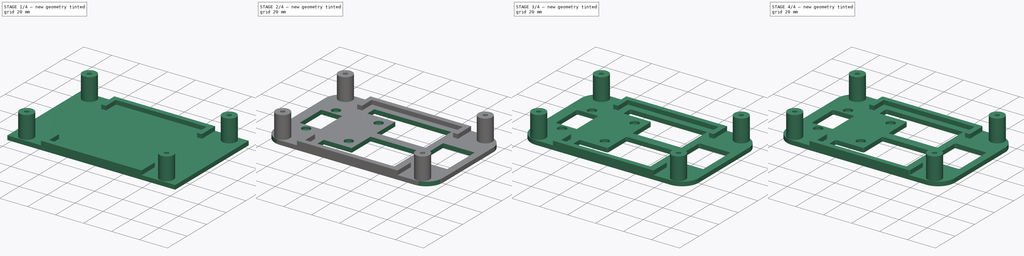
[diagram: build sequence overview — one tinted view per stage of 4, left to right]
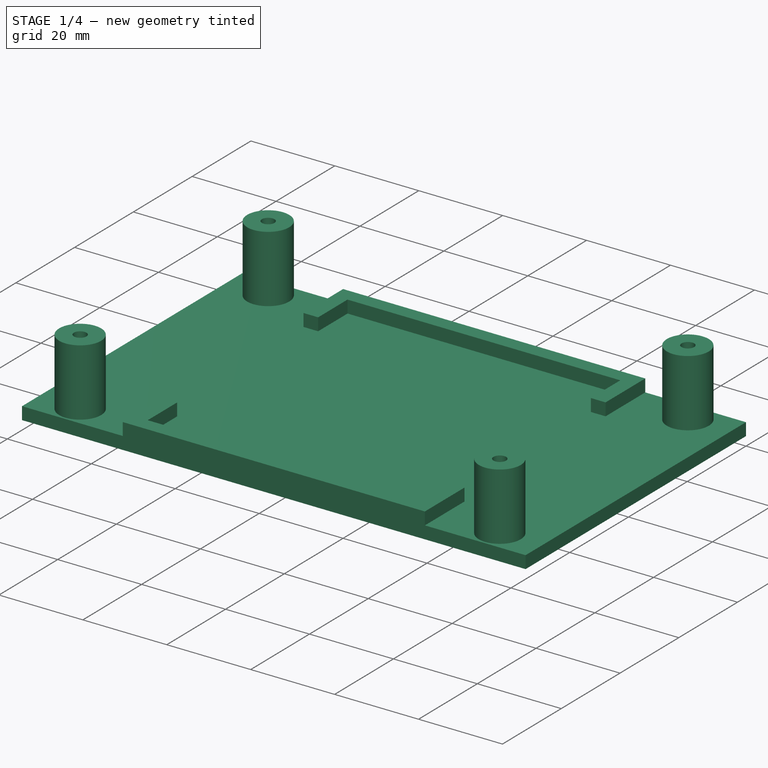
[diagram: stage 1 of 4 — iso view after this stage's code; geometry added in this stage tinted green]
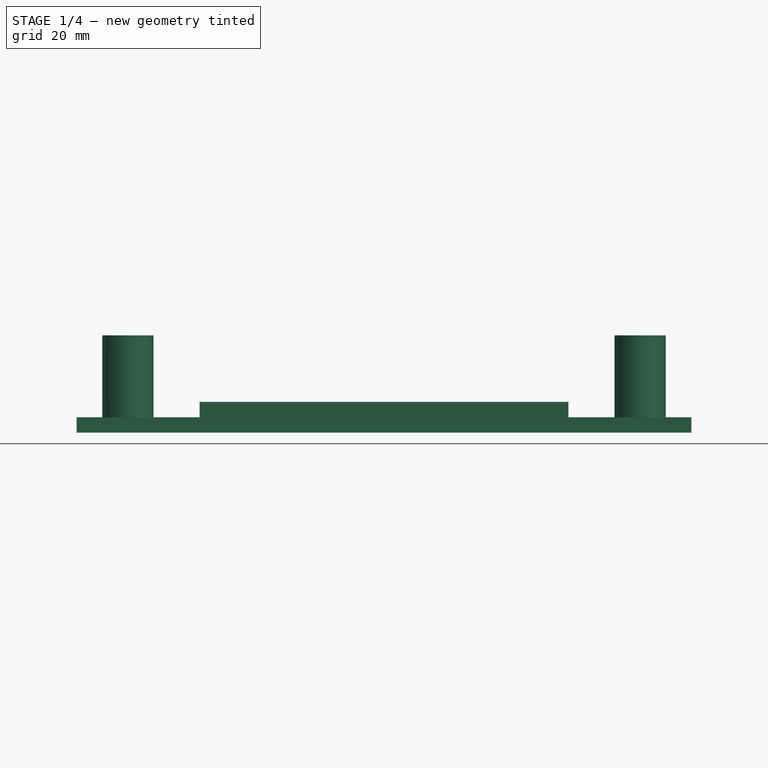
[diagram: stage 1 of 4 — front view after this stage's code; geometry added in this stage tinted green]
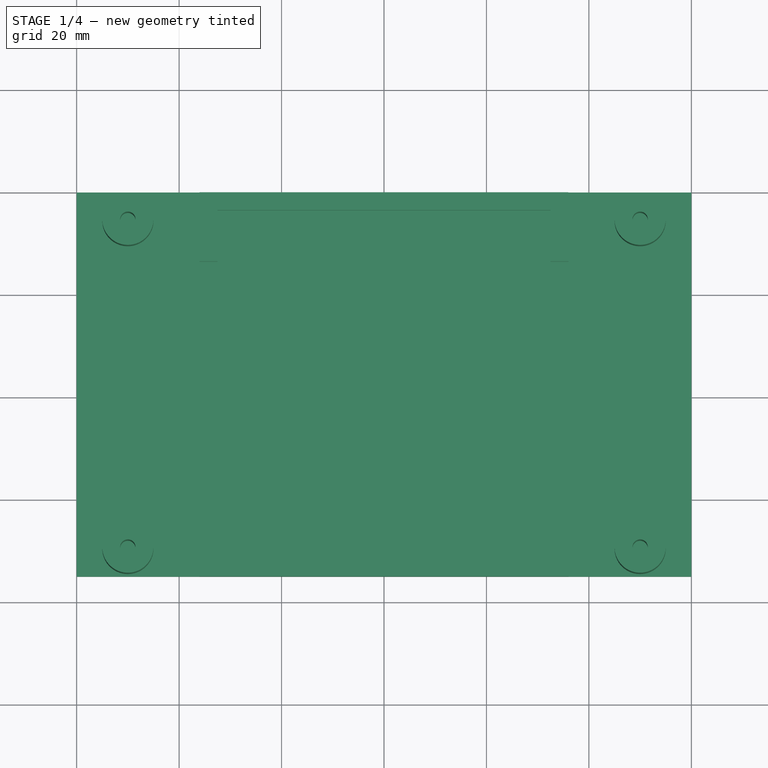
[diagram: stage 1 of 4 — top view after this stage's code; geometry added in this stage tinted green]
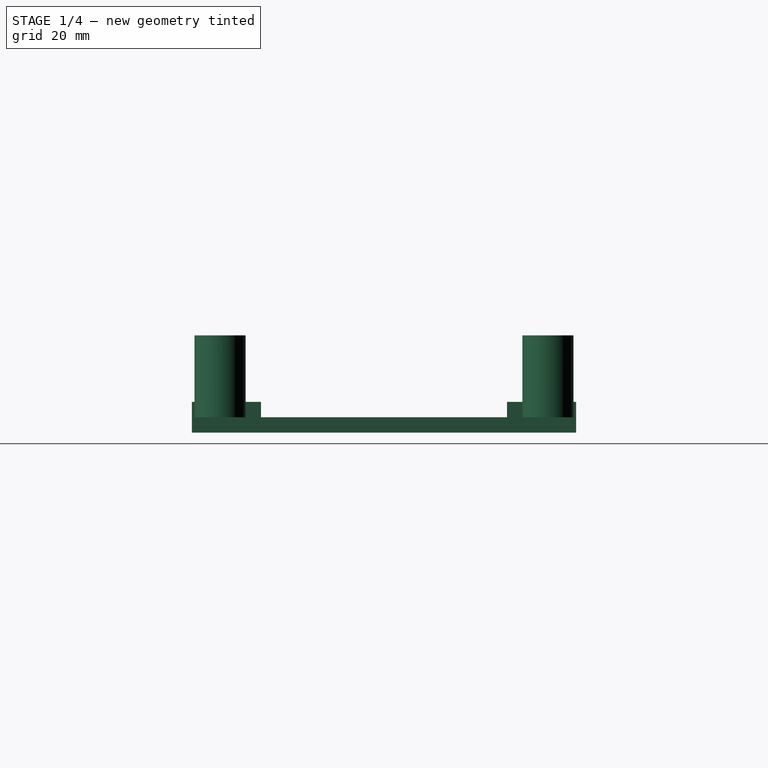
[diagram: stage 1 of 4 — right view after this stage's code; geometry added in this stage tinted green]
FCSTD DOCUMENT  (FreeCAD 0.16R6707 (Git))
Label: SupportCartes
License: All rights reserved
LicenseURL: http://en.wikipedia.org/wiki/All_rights_reserved
objects: PartDesign::Fillet×7, Sketcher::SketchObject×5, PartDesign::Pad×3, PartDesign::Pocket×2
note: 22 computed .brp shape members not serialized (recipe doc carries the construction recipe); baked Part::Feature solids carry a one-line shape summary decoded from their .brp

FEATURE [Sketcher::SketchObject] Sketch
  sketch-geometry (4):
    g0: LineSegment StartX=0 StartY=0 StartZ=0 EndX=120 EndY=0 EndZ=0
    g1: LineSegment StartX=120 StartY=0 StartZ=0 EndX=120 EndY=-75 EndZ=0
    g2: LineSegment StartX=120 StartY=-75 StartZ=0 EndX=0 EndY=-75 EndZ=0
    g3: LineSegment StartX=0 StartY=-75 StartZ=0 EndX=0 EndY=0 EndZ=0
  constraints (11):
    c: Coincident(g0,g1)
    c: Coincident(g1,g2)
    c: Coincident(g2,g3)
    c: Coincident(g3,g0)
    c: Horizontal(g0)
    c: Horizontal(g2)
    c: Vertical(g1)
    c: Vertical(g3)
    c: Coincident(g0,g-1)
    c: DistanceX(g0,g0) = 120
    c: DistanceY(g3,g3) = 75
FEATURE [PartDesign::Pad] Pad
  Length = 3
  Length2 = 100
  Sketch = -> Sketch
  Type = 0
FEATURE [Sketcher::SketchObject] Sketch001
  ExternalGeometry = -> [Pad]
  Placement = pos=(0,0,3) rot=(0,0,1;0rad)
  Support = -> Pad [Face6]
  sketch-geometry (16):
    g0: LineSegment StartX=27.5 StartY=-3.5 StartZ=0 EndX=92.5 EndY=-3.5 EndZ=0
    g1: LineSegment StartX=92.5 StartY=-3.5 StartZ=0 EndX=92.5 EndY=-13.5 EndZ=0
    g2: LineSegment StartX=92.5 StartY=-71.5 StartZ=0 EndX=27.5 EndY=-71.5 EndZ=0
    g3: LineSegment StartX=27.5 StartY=-71.5 StartZ=0 EndX=27.5 EndY=-61.5 EndZ=0
    g4: LineSegment StartX=24 StartY=0 StartZ=0 EndX=96 EndY=0 EndZ=0
    g5: LineSegment StartX=96 StartY=0 StartZ=0 EndX=96 EndY=-13.5 EndZ=0
    g6: LineSegment StartX=96 StartY=-75 StartZ=0 EndX=24 EndY=-75 EndZ=0
    g7: LineSegment StartX=24 StartY=-75 StartZ=0 EndX=24 EndY=-61.5 EndZ=0
    g8: LineSegment StartX=92.5 StartY=-13.5 StartZ=0 EndX=96 EndY=-13.5 EndZ=0
    g9: LineSegment StartX=24 StartY=-13.5 StartZ=0 EndX=27.5 EndY=-13.5 EndZ=0
    g10: LineSegment StartX=24 StartY=-61.5 StartZ=0 EndX=27.5 EndY=-61.5 EndZ=0
    g11: LineSegment StartX=92.5 StartY=-61.5 StartZ=0 EndX=96 EndY=-61.5 EndZ=0
    g12: LineSegment StartX=96 StartY=-61.5 StartZ=0 EndX=96 EndY=-75 EndZ=0
    g13: LineSegment StartX=92.5 StartY=-61.5 StartZ=0 EndX=92.5 EndY=-71.5 EndZ=0
    g14: LineSegment StartX=27.5 StartY=-13.5 StartZ=0 EndX=27.5 EndY=-3.5 EndZ=0
    g15: LineSegment StartX=24 StartY=-13.5 StartZ=0 EndX=24 EndY=0 EndZ=0
  constraints (44):
    c: Coincident(g0,g1)
    c: Coincident(g13,g2)
    c: Coincident(g2,g3)
    c: Coincident(g14,g0)
    c: Horizontal(g0)
    c: Horizontal(g2)
    c: Vertical(g1)
    c: Vertical(g3)
    c: Coincident(g12,g6)
    c: Coincident(g6,g7)
    c: Coincident(g15,g4)
    c: Horizontal(g4)
    c: Horizontal(g6)
    c: Vertical(g5)
    c: Vertical(g7)
    c: DistanceX(g0,g0) = 65
    c: DistanceY(g13,g1) = 68
    c: DistanceY(g0,g4) = 3.5
    c: DistanceX(g13,g12) = 3.5
    c: DistanceX(g6,g2) = 3.5
    c: DistanceX(g-1,g4) = 24
    c: Horizontal(g8)
    c: Horizontal(g11)
    c: Horizontal(g9)
    c: Horizontal(g10)
    c: Coincident(g5,g8)
    c: Coincident(g12,g11)
    c: Tangent(g5,g12)
    c: Coincident(g1,g8)
    c: Coincident(g13,g11)
    c: Tangent(g1,g13)
    c: Coincident(g3,g10)
    c: Coincident(g14,g9)
    c: Tangent(g3,g14)
    c: Coincident(g7,g10)
    c: Coincident(g15,g9)
    c: Tangent(g7,g15)
    c: DistanceY(g14,g14) = 10
    c: DistanceY(g1,g1) = 10
    c: DistanceY(g3,g3) = 10
    c: DistanceY(g13,g13) = 10
    c: PointOnObject(g6,g-4)
    c: Coincident(g5,g4)
    c: PointOnObject(g4,g-1)
FEATURE [PartDesign::Pad] Pad001
  Length = 3
  Length2 = 100
  Sketch = -> Sketch001
  Type = 0
FEATURE [Sketcher::SketchObject] Sketch002
  ExternalGeometry = -> [Pad001]
  Placement = pos=(0,0,3) rot=(0,0,1;0rad)
  Support = -> Pad001 [Face5]
  sketch-geometry (8):
    g0: Circle CenterX=10 CenterY=-5.5 CenterZ=0 NormalX=0 NormalY=0 NormalZ=1 Radius=5
    g1: Circle CenterX=110 CenterY=-5.5 CenterZ=0 NormalX=0 NormalY=0 NormalZ=1 Radius=5
    g2: Circle CenterX=110 CenterY=-69.5 CenterZ=0 NormalX=0 NormalY=0 NormalZ=1 Radius=5
    g3: Circle CenterX=10 CenterY=-69.5 CenterZ=0 NormalX=0 NormalY=0 NormalZ=1 Radius=5
    g4: Circle CenterX=10 CenterY=-5.5 CenterZ=0 NormalX=0 NormalY=0 NormalZ=1 Radius=1.5
    g5: Circle CenterX=10 CenterY=-69.5 CenterZ=0 NormalX=0 NormalY=0 NormalZ=1 Radius=1.5
    g6: Circle CenterX=110 CenterY=-5.5 CenterZ=0 NormalX=0 NormalY=0 NormalZ=1 Radius=1.5
    g7: Circle CenterX=110 CenterY=-69.5 CenterZ=0 NormalX=0 NormalY=0 NormalZ=1 Radius=1.5
  constraints (20):
    c: Radius(g0) = 5
    c: Radius(g3) = 5
    c: Equal(g3,g1)
    c: Equal(g3,g2)
    c: DistanceX(g1,g-3) = 10
    c: DistanceY(g1,g-3) = 5.5
    c: DistanceX(g2,g-3) = 10
    c: DistanceY(g-3,g2) = 5.5
    c: DistanceY(g-4,g3) = 5.5
    c: DistanceX(g-4,g3) = 10
    c: DistanceY(g0,g-1) = 5.5
    c: DistanceX(g-1,g0) = 10
    c: Radius(g4) = 1.5
    c: Equal(g4,g5)
    c: Equal(g4,g7)
    c: Equal(g4,g6)
    c: Coincident(g6,g1)
    c: Coincident(g7,g2)
    c: Coincident(g5,g3)
    c: Coincident(g4,g0)
FEATURE [PartDesign::Pad] Pad002
  Length = 16
  Length2 = 100
  Sketch = -> Sketch002
  Type = 0
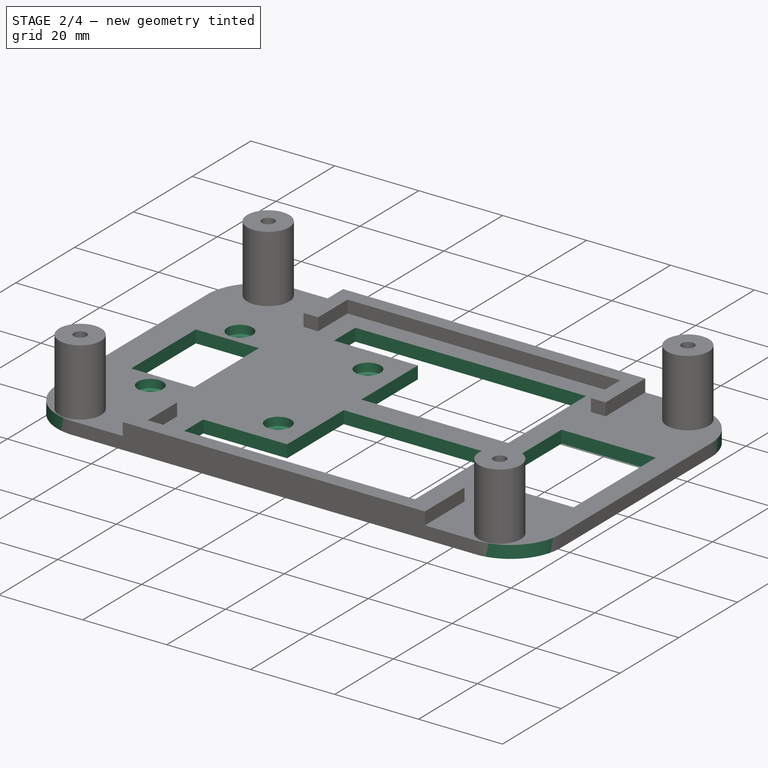
[diagram: stage 2 of 4 — iso view after this stage's code; geometry added in this stage tinted green]
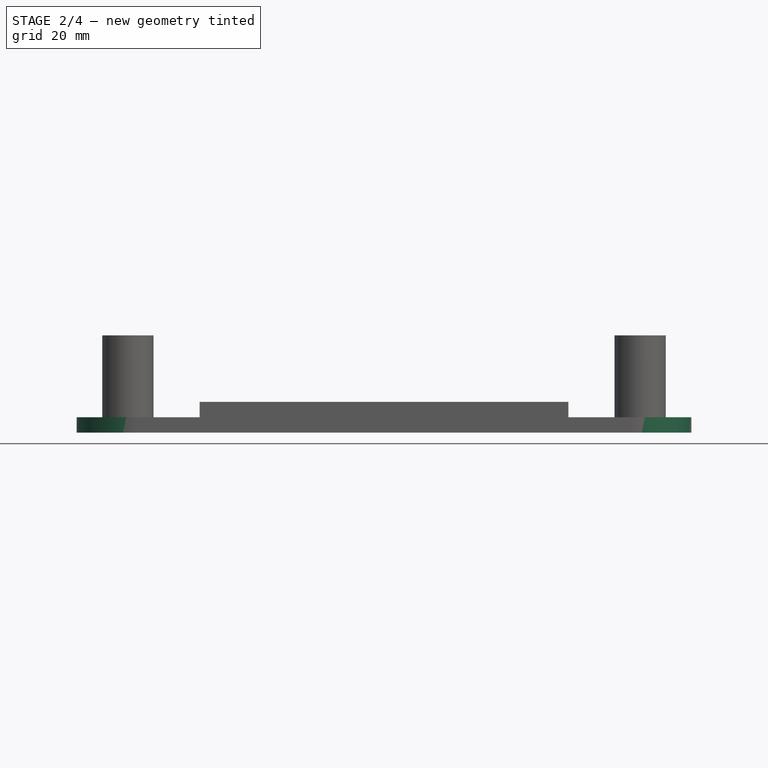
[diagram: stage 2 of 4 — front view after this stage's code; geometry added in this stage tinted green]
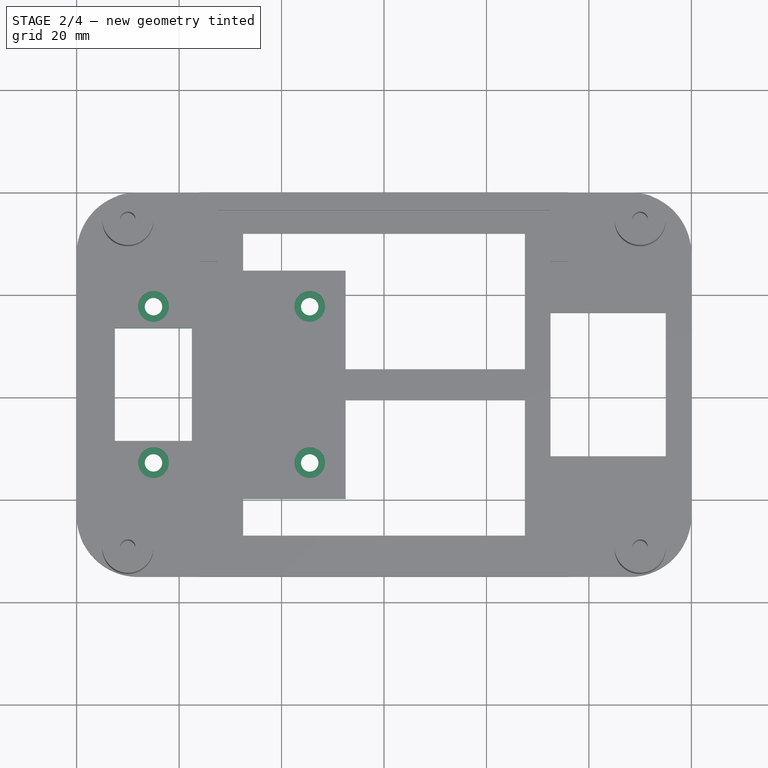
[diagram: stage 2 of 4 — top view after this stage's code; geometry added in this stage tinted green]
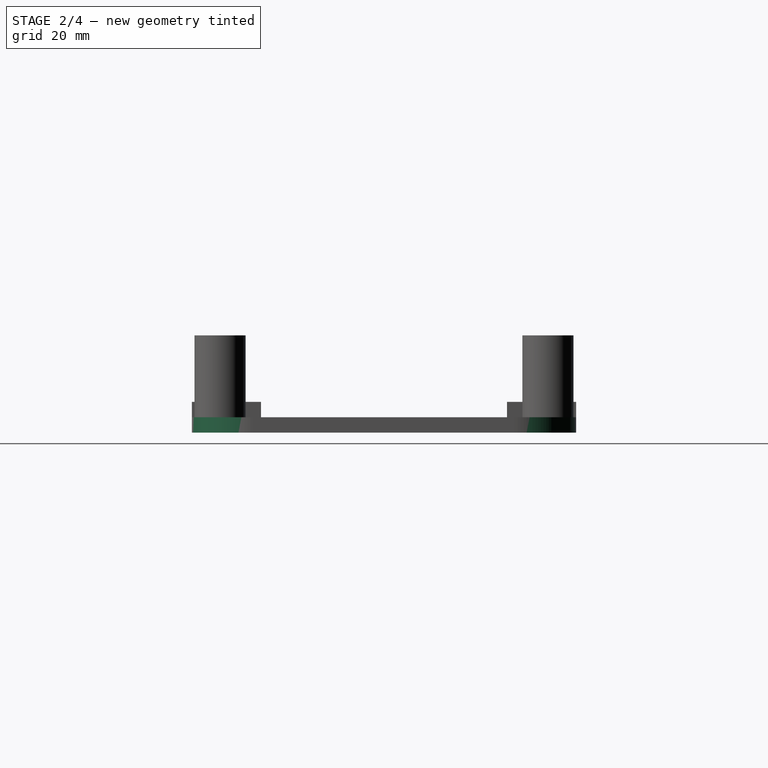
[diagram: stage 2 of 4 — right view after this stage's code; geometry added in this stage tinted green]
FEATURE [Sketcher::SketchObject] Sketch003
  ExternalGeometry = -> [Pad002]
  Placement = pos=(0,0,3) rot=(0,0,1;0rad)
  Support = -> Pad002 [Face5]
  sketch-geometry (27):
    g0: Circle CenterX=15 CenterY=-22.25 CenterZ=0 NormalX=0 NormalY=0 NormalZ=1 Radius=1.7
    g1: Circle CenterX=45.5 CenterY=-22.25 CenterZ=0 NormalX=0 NormalY=0 NormalZ=1 Radius=1.7
    g2: Circle CenterX=15 CenterY=-52.75 CenterZ=0 NormalX=0 NormalY=0 NormalZ=1 Radius=1.7
    g3: Circle CenterX=45.5 CenterY=-52.75 CenterZ=0 NormalX=0 NormalY=0 NormalZ=1 Radius=1.7
    g4: LineSegment [constr] StartX=15 StartY=-37.5 StartZ=0 EndX=45.5 EndY=-37.5 EndZ=0
    g5: LineSegment [constr] StartX=45.5 StartY=-22.25 StartZ=0 EndX=45.5 EndY=-52.75 EndZ=0
    g6: LineSegment [constr] StartX=15 StartY=-22.25 StartZ=0 EndX=15 EndY=-52.75 EndZ=0
    g7: LineSegment StartX=7.46 StartY=-26.5 StartZ=0 EndX=22.5 EndY=-26.5 EndZ=0
    g8: LineSegment StartX=22.5 StartY=-26.5 StartZ=0 EndX=22.5 EndY=-48.5 EndZ=0
    g9: LineSegment StartX=22.5 StartY=-48.5 StartZ=0 EndX=7.46 EndY=-48.5 EndZ=0
    g10: LineSegment StartX=7.46 StartY=-48.5 StartZ=0 EndX=7.46 EndY=-26.5 EndZ=0
    g11: LineSegment StartX=32.5 StartY=-8 StartZ=0 EndX=87.5 EndY=-8 EndZ=0
    g12: LineSegment StartX=87.5 StartY=-8 StartZ=0 EndX=87.5 EndY=-34.5 EndZ=0
    g13: LineSegment StartX=32.5 StartY=-8 StartZ=0 EndX=32.5 EndY=-15.25 EndZ=0
    g14: LineSegment StartX=32.5 StartY=-15.25 StartZ=0 EndX=52.5 EndY=-15.25 EndZ=0
    g15: LineSegment StartX=52.5 StartY=-15.25 StartZ=0 EndX=52.5 EndY=-34.5 EndZ=0
    g16: LineSegment StartX=52.5 StartY=-34.5 StartZ=0 EndX=87.5 EndY=-34.5 EndZ=0
    g17: LineSegment StartX=32.5 StartY=-59.75 StartZ=0 EndX=32.5 EndY=-67 EndZ=0
    g18: LineSegment StartX=32.5 StartY=-67 StartZ=0 EndX=87.5 EndY=-67 EndZ=0
    g19: LineSegment StartX=87.5 StartY=-67 StartZ=0 EndX=87.5 EndY=-40.5 EndZ=0
    g20: LineSegment StartX=87.5 StartY=-40.5 StartZ=0 EndX=52.5 EndY=-40.5 EndZ=0
    g21: LineSegment StartX=52.5 StartY=-40.5 StartZ=0 EndX=52.5 EndY=-59.75 EndZ=0
    g22: LineSegment StartX=32.5 StartY=-59.75 StartZ=0 EndX=52.5 EndY=-59.75 EndZ=0
    g23: LineSegment StartX=92.5 StartY=-23.5 StartZ=0 EndX=115 EndY=-23.5 EndZ=0
    g24: LineSegment StartX=115 StartY=-23.5 StartZ=0 EndX=115 EndY=-51.5 EndZ=0
    g25: LineSegment StartX=115 StartY=-51.5 StartZ=0 EndX=92.5 EndY=-51.5 EndZ=0
    g26: LineSegment StartX=92.5 StartY=-51.5 StartZ=0 EndX=92.5 EndY=-23.5 EndZ=0
  constraints (80):
    c: Radius(g0) = 1.7
    c: Equal(g0,g1)
    c: Equal(g0,g3)
    c: Equal(g0,g2)
    c: Horizontal(g4)
    c: Vertical(g5)
    c: Vertical(g6)
    c: DistanceY(g4,g-1) = 37.5
    c: DistanceY(g6,g6) = 30.5
    c: Coincident(g6,g0)
    c: Coincident(g2,g6)
    c: PointOnObject(g4,g6)
    c: Symmetric(g0,g2,g4)
    c: DistanceY(g5,g5) = 30.5
    c: Coincident(g1,g5)
    c: Coincident(g3,g5)
    c: Symmetric(g3,g1,g4)
    c: PointOnObject(g4,g5)
    c: DistanceX(g4,g4) = 30.5
    c: Coincident(g7,g8)
    c: Coincident(g8,g9)
    c: Coincident(g9,g10)
    c: Coincident(g10,g7)
    c: Horizontal(g7)
    c: Horizontal(g9)
    c: Vertical(g8)
    c: Vertical(g10)
    c: DistanceY(g8,g8) = 22
    c: Symmetric(g7,g8,g4)
    c: DistanceX(g4,g7) = 7.5
    c: DistanceX(g-1,g4) = 15
    c: DistanceX(g7,g4) = 7.54
    c: Horizontal(g11)
    c: Coincident(g12,g11)
    c: Vertical(g13)
    c: Horizontal(g14)
    c: Vertical(g15)
    c: Coincident(g16,g15)
    c: Horizontal(g16)
    c: Coincident(g12,g16)
    c: Vertical(g12)
    c: Coincident(g11,g13)
    c: Coincident(g13,g14)
    c: Coincident(g14,g15)
    c: DistanceY(g1,g14) = 7
    c: DistanceX(g1,g15) = 7
    c: DistanceY(g4,g15) = 3
    c: DistanceY(g11,g-1) = 8
    c: Horizontal(g18)
    c: Vertical(g19)
    c: Horizontal(g20)
    c: Coincident(g21,g20)
    c: Vertical(g21)
    c: Horizontal(g22)
    c: Coincident(g17,g22)
    c: Coincident(g21,g22)
    c: Coincident(g17,g18)
    c: Coincident(g18,g19)
    c: Coincident(g19,g20)
    c: DistanceY(g21,g3) = 7
    c: DistanceX(g3,g20) = 7
    c: DistanceY(g20,g4) = 3
    c: Vertical(g17)
    c: Coincident(g23,g24)
    c: Coincident(g24,g25)
    c: Coincident(g25,g26)
    c: Coincident(g26,g23)
    c: Horizontal(g23)
    c: Horizontal(g25)
    c: Vertical(g24)
    c: Vertical(g26)
    c: DistanceX(g-4,g11) = 5
    c: DistanceX(g-7,g17) = 5
    c: DistanceY(g-9,g18) = 8
    c: DistanceX(g23,g-9) = 5
    c: DistanceX(g19,g25) = 5
    c: DistanceX(g12,g23) = 5
    c: DistanceX(g11,g-3) = 5
    c: DistanceY(g-6,g25) = 10
    c: DistanceY(g23,g-3) = 10
FEATURE [PartDesign::Pocket] Pocket
  Length = 5
  Sketch = -> Sketch003
  Type = 1
FEATURE [Sketcher::SketchObject] Sketch004
  ExternalGeometry = -> [Pocket]
  Placement = pos=(0,0,3) rot=(0,0,1;0rad)
  Support = -> Pocket [Face5]
  sketch-geometry (4):
    g0: Circle CenterX=45.5 CenterY=-22.25 CenterZ=0 NormalX=0 NormalY=0 NormalZ=1 Radius=3
    g1: Circle CenterX=15 CenterY=-22.25 CenterZ=0 NormalX=0 NormalY=0 NormalZ=1 Radius=3
    g2: Circle CenterX=15 CenterY=-52.75 CenterZ=0 NormalX=0 NormalY=0 NormalZ=1 Radius=3
    g3: Circle CenterX=45.5 CenterY=-52.75 CenterZ=0 NormalX=0 NormalY=0 NormalZ=1 Radius=3
  constraints (8):
    c: Radius(g0) = 3
    c: Equal(g0,g3)
    c: Equal(g0,g2)
    c: Equal(g0,g1)
    c: Coincident(g1,g-3)
    c: Coincident(g2,g-6)
    c: Coincident(g3,g-5)
    c: Coincident(g0,g-4)
FEATURE [PartDesign::Pocket] Pocket001
  Length = 2
  Sketch = -> Sketch004
  Type = 0
FEATURE [PartDesign::Fillet] Fillet
  Base = -> Pocket001 [Edge1,Edge2,Edge12,Edge5]
  Radius = 12
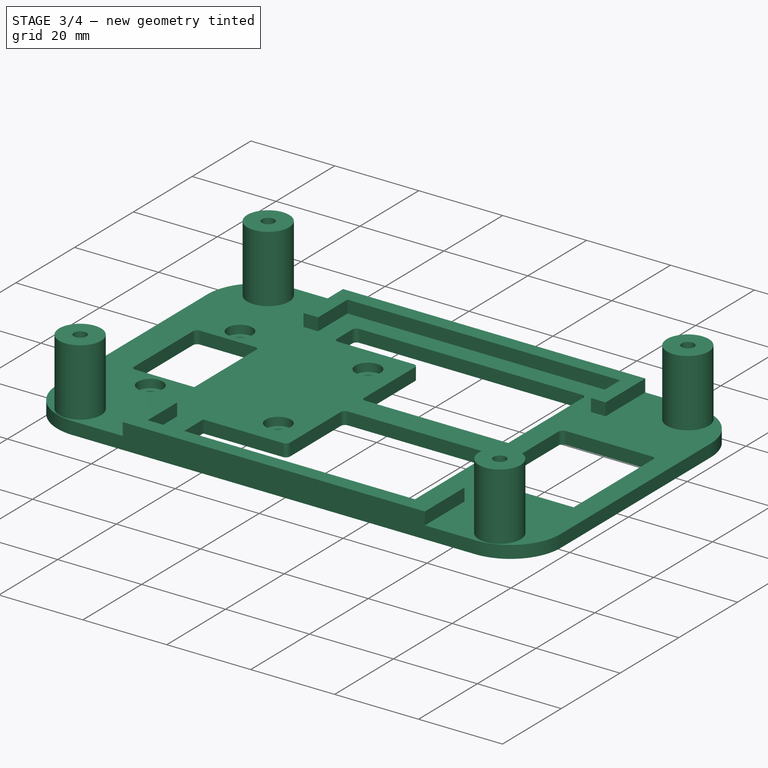
[diagram: stage 3 of 4 — iso view after this stage's code; geometry added in this stage tinted green]
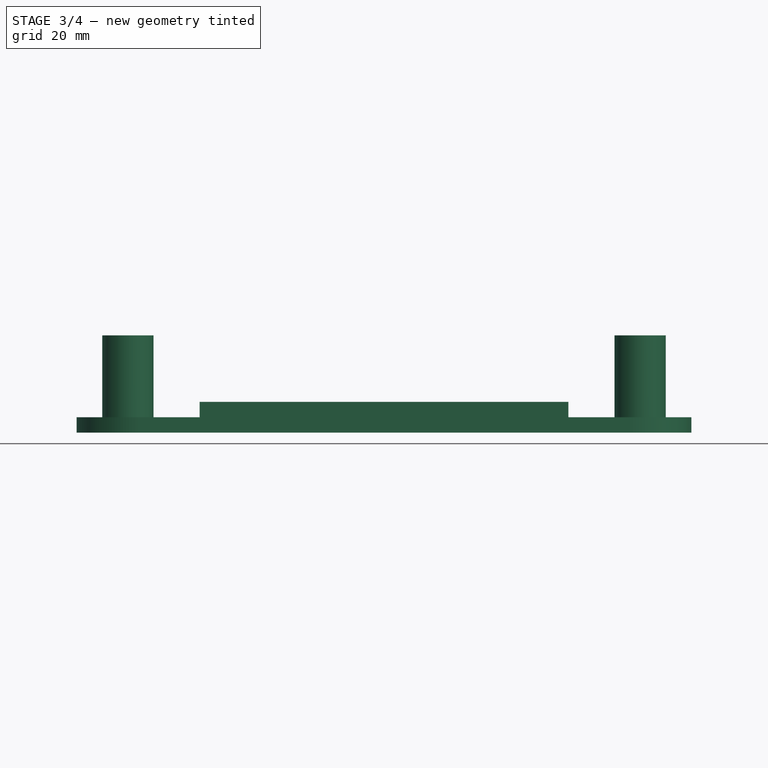
[diagram: stage 3 of 4 — front view after this stage's code; geometry added in this stage tinted green]
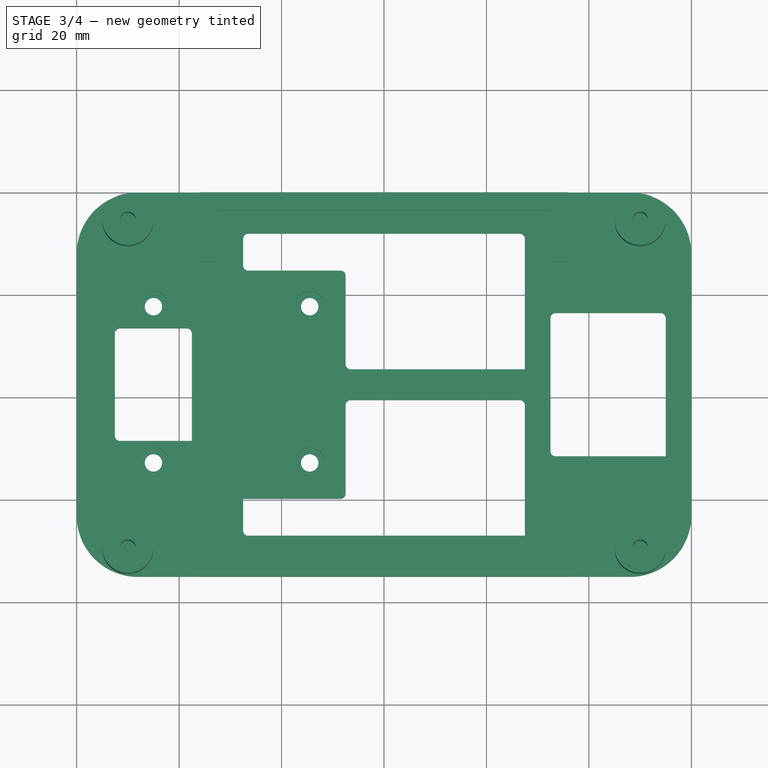
[diagram: stage 3 of 4 — top view after this stage's code; geometry added in this stage tinted green]
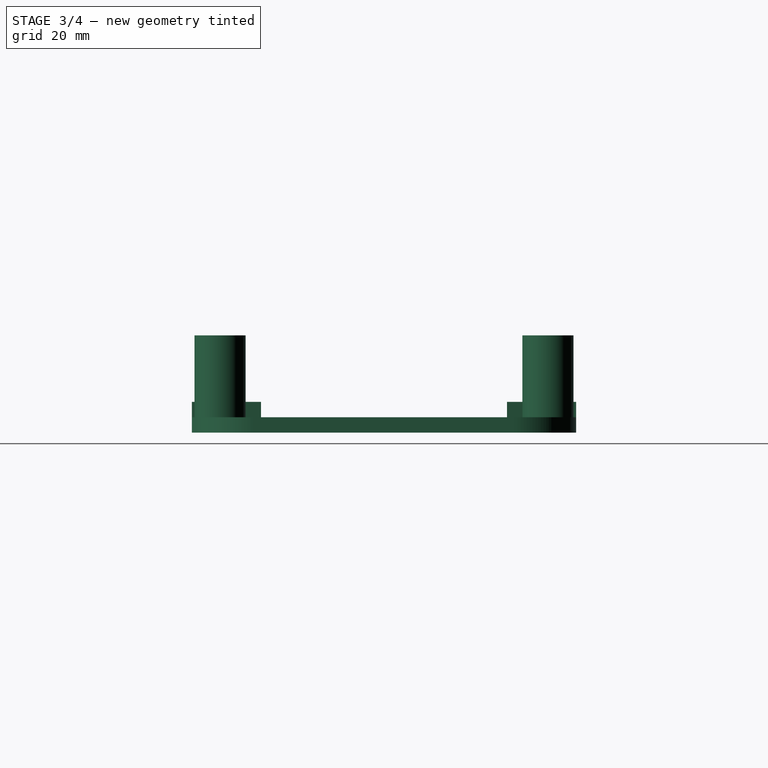
[diagram: stage 3 of 4 — right view after this stage's code; geometry added in this stage tinted green]
FEATURE [PartDesign::Fillet] Fillet001
  Base = -> Fillet [Edge102,Edge103,Edge107,Edge110,Edge95,Edge101,Edge117]
  Radius = 1
FEATURE [PartDesign::Fillet] Fillet002
  Base = -> Fillet001 [Edge46,Edge102,Edge84,Edge118]
  Radius = 1
FEATURE [PartDesign::Fillet] Fillet003
  Base = -> Fillet002 [Edge106,Edge86,Edge52,Edge124]
  Radius = 1
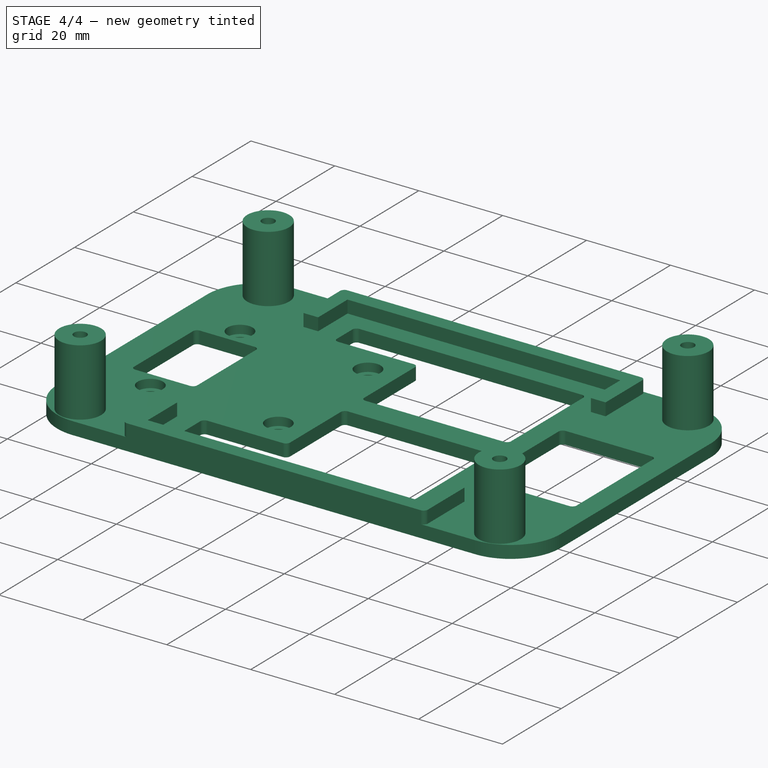
[diagram: stage 4 of 4 — iso view after this stage's code; geometry added in this stage tinted green]
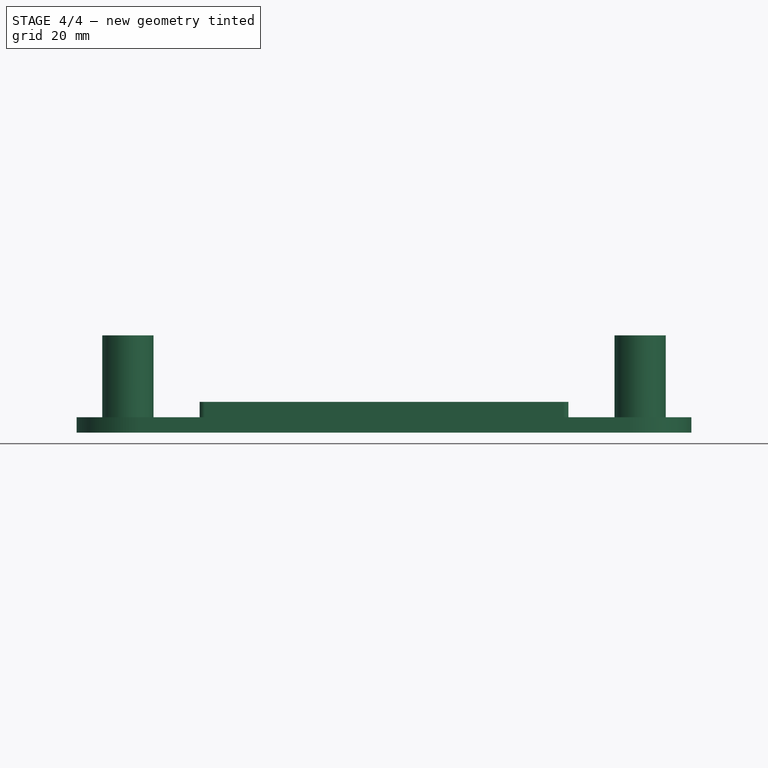
[diagram: stage 4 of 4 — front view after this stage's code; geometry added in this stage tinted green]
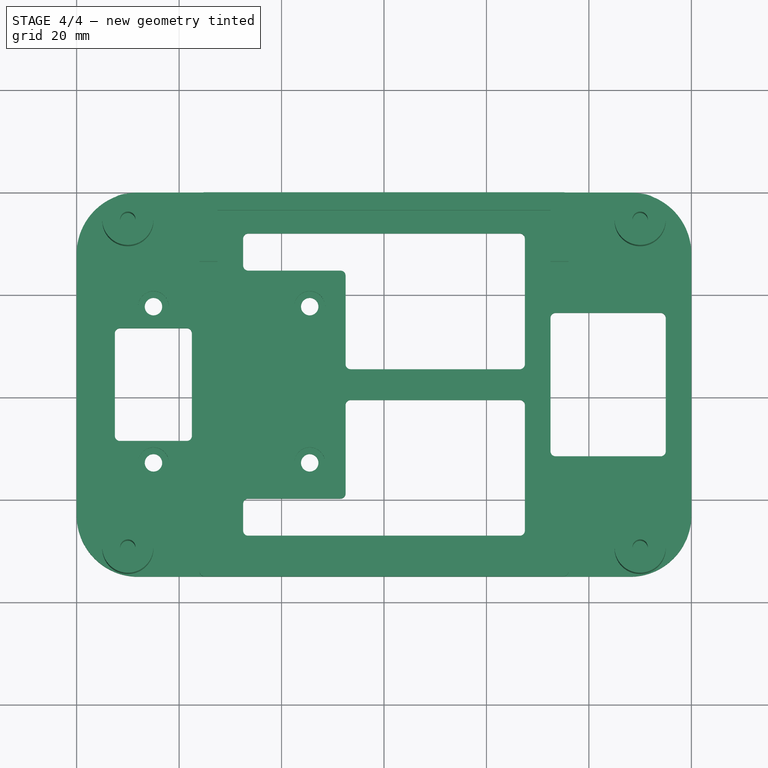
[diagram: stage 4 of 4 — top view after this stage's code; geometry added in this stage tinted green]
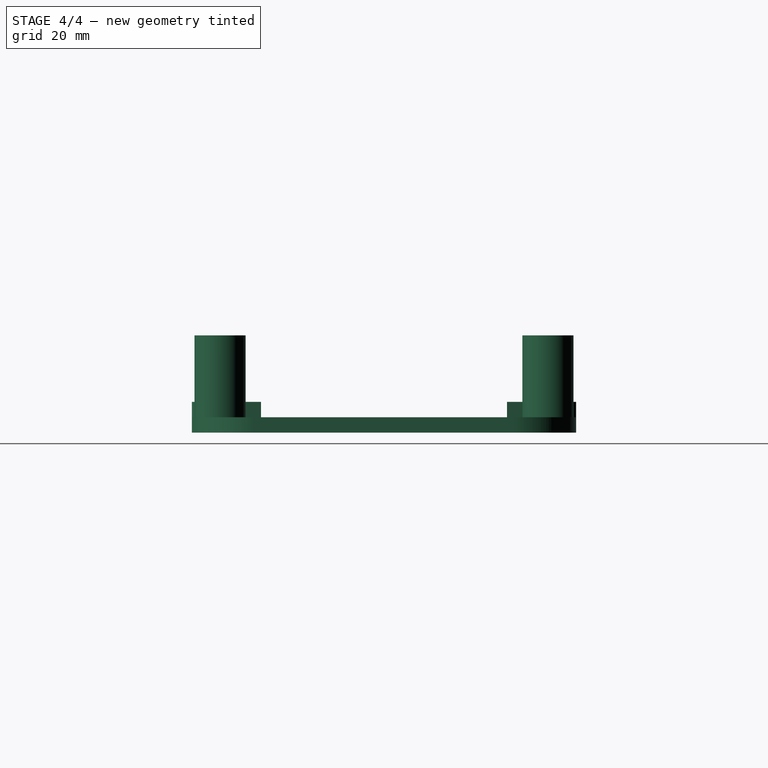
[diagram: stage 4 of 4 — right view after this stage's code; geometry added in this stage tinted green]
FEATURE [PartDesign::Fillet] Fillet004
  Base = -> Fillet003 [Edge142,Edge100,Edge122,Edge58]
  Radius = 1
FEATURE [PartDesign::Fillet] Fillet005
  Base = -> Fillet004 [Edge136]
  Radius = 1
FEATURE [PartDesign::Fillet] Fillet006
  Base = -> Fillet005 [Edge183,Edge185,Edge188,Edge186]
  Radius = 1
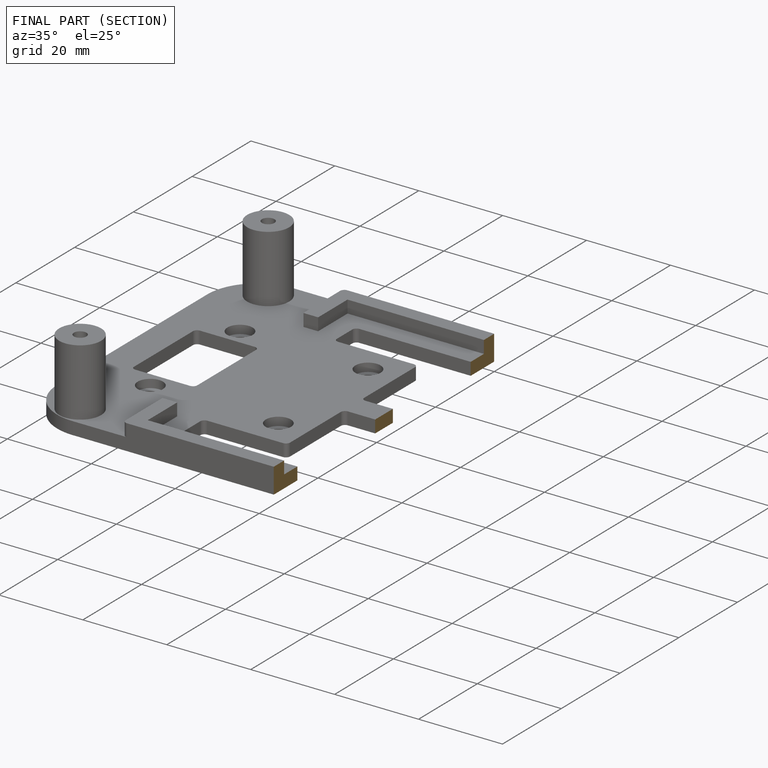
[diagram: finished part — half-section view (interior)]
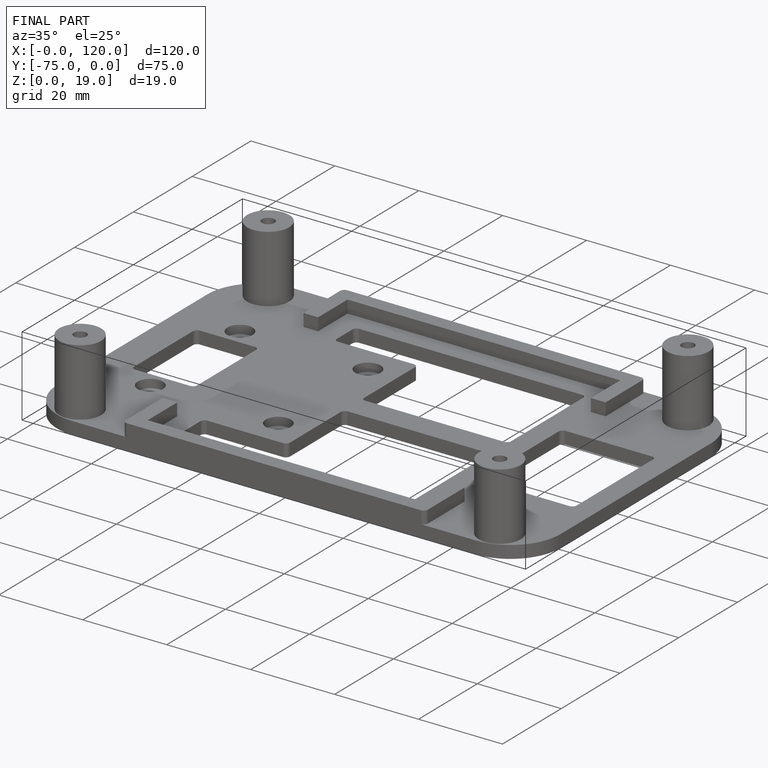
[diagram: finished part — iso view with bounding-box wireframe]
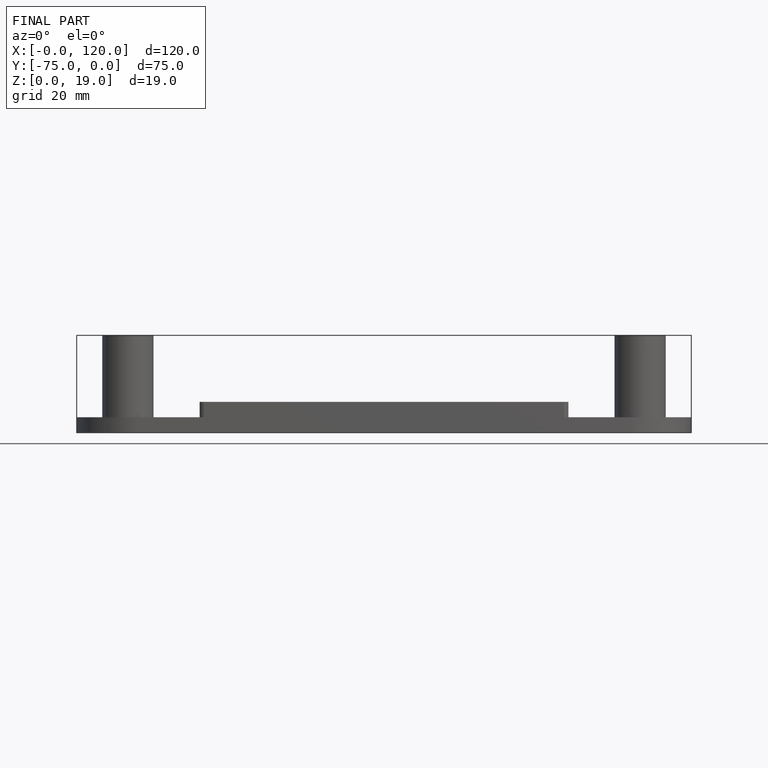
[diagram: finished part — front view with bounding-box wireframe]
